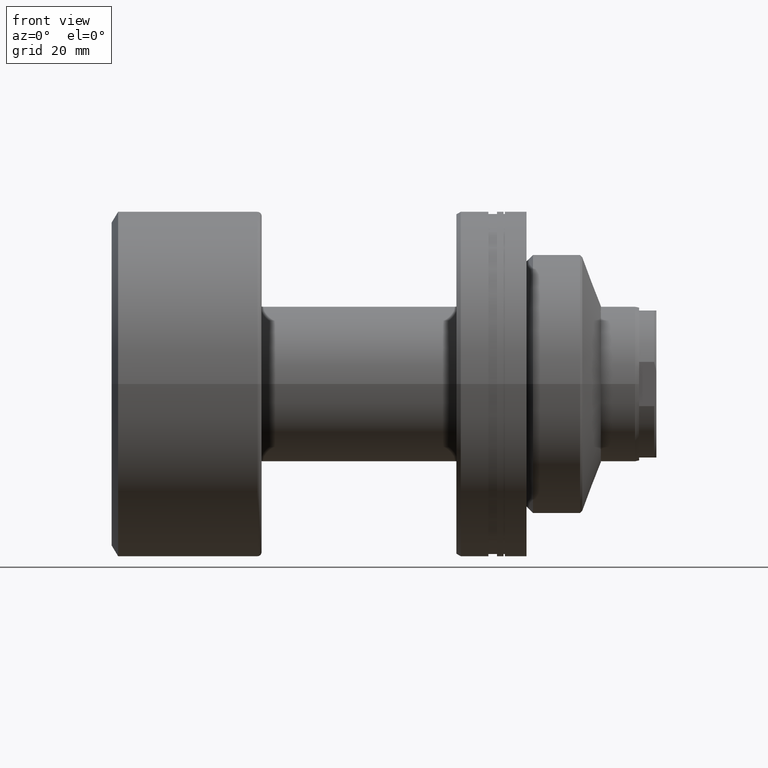
[diagram: clean part render]
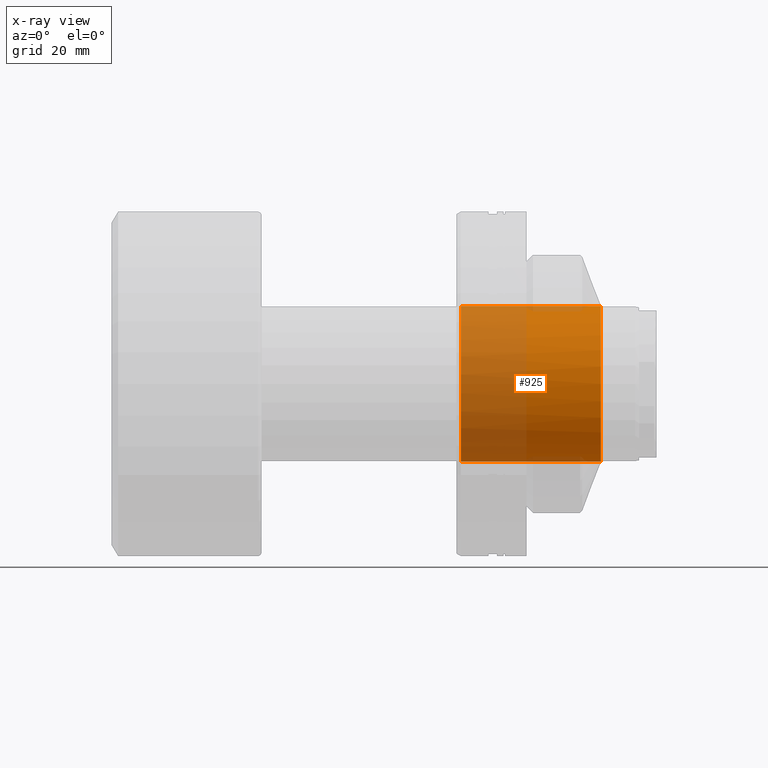
[diagram: x-ray — body ghosted, one internal face saturated and labeled with its STEP entity id]
A machine part, front view, then the same camera in x-ray: the body is ghosted and one INTERNAL B-rep face — a face not visible from any outside direction — is saturated and labeled: STEP entity #925.
In plain terms, the highlighted cylindrical surface (partial cylindrical patch) has radius 18 mm, axis along (1, 0, 0).
Its self-contained STEP definition (entity closure, byte-faithful):
#1 = AXIS2_PLACEMENT_3D ( 'NONE', #1740, #2313, #1235 ) ;
#58 = CARTESIAN_POINT ( 'NONE',  ( -6.772881355932611314, -17.99999999999998934, 0.000000000000000000 ) ) ;
#73 = CARTESIAN_POINT ( 'NONE',  ( -91.11168824543142364, 2.204364238465235033E-15, 18.00000000000000000 ) ) ;
#106 = EDGE_CURVE ( 'NONE', #1420, #485, #1734, .T. ) ;
#107 = CARTESIAN_POINT ( 'NONE',  ( -91.11168824543142364, 0.000000000000000000, 0.000000000000000000 ) ) ;
#368 = CARTESIAN_POINT ( 'NONE',  ( -39.19999999999999574, 2.204364238465235033E-15, 18.00000000000000000 ) ) ;
#434 = DIRECTION ( 'NONE',  ( 1.000000000000000000, -0.000000000000000000, -0.000000000000000000 ) ) ;
#452 = FACE_OUTER_BOUND ( 'NONE', #2282, .T. ) ;
#472 = LINE ( 'NONE', #2104, #1460 ) ;
#485 = VERTEX_POINT ( 'NONE', #1970 ) ;
#487 = EDGE_CURVE ( 'NONE', #1818, #1420, #1054, .T. ) ;
#562 = CARTESIAN_POINT ( 'NONE',  ( -6.772881355932618419, 4.622231866529366047E-30, -18.00000000000000000 ) ) ;
#626 = DIRECTION ( 'NONE',  ( 1.000000000000000000, -0.000000000000000000, -0.000000000000000000 ) ) ;
#628 = AXIS2_PLACEMENT_3D ( 'NONE', #2164, #1599, #2294 ) ;
#727 = AXIS2_PLACEMENT_3D ( 'NONE', #107, #434, #2094 ) ;
#840 = CIRCLE ( 'NONE', #1500, 18.00000000000000000 ) ;
#868 = CARTESIAN_POINT ( 'NONE',  ( -39.19999999999999574, 0.000000000000000000, -18.00000000000000000 ) ) ;
#879 = EDGE_CURVE ( 'NONE', #2025, #1818, #472, .T. ) ;
#925 = ADVANCED_FACE ( 'NONE', ( #452 ), #1204, .F. ) ;
#971 = DIRECTION ( 'NONE',  ( 0.000000000000000000, 0.000000000000000000, -1.000000000000000000 ) ) ;
#1019 = DIRECTION ( 'NONE',  ( 1.000000000000000000, -0.000000000000000000, -0.000000000000000000 ) ) ;
#1054 = CIRCLE ( 'NONE', #628, 18.00000000000000000 ) ;
#1140 = DIRECTION ( 'NONE',  ( -1.000000000000000000, 0.000000000000000000, 0.000000000000000000 ) ) ;
#1160 = VERTEX_POINT ( 'NONE', #368 ) ;
#1204 = CYLINDRICAL_SURFACE ( 'NONE', #727, 18.00000000000000000 ) ;
#1235 = DIRECTION ( 'NONE',  ( 3.854941057726238097E-16, -1.000000000000000000, 0.000000000000000000 ) ) ;
#1337 = EDGE_CURVE ( 'NONE', #1160, #485, #1372, .T. ) ;
#1372 = LINE ( 'NONE', #73, #1906 ) ;
#1420 = VERTEX_POINT ( 'NONE', #58 ) ;
#1460 = VECTOR ( 'NONE', #1019, 1000.000000000000000 ) ;
#1500 = AXIS2_PLACEMENT_3D ( 'NONE', #1681, #1140, #971 ) ;
#1544 = EDGE_CURVE ( 'NONE', #2025, #1160, #840, .T. ) ;
#1599 = DIRECTION ( 'NONE',  ( -1.000000000000000000, -3.738146982434194072E-16, 0.000000000000000000 ) ) ;
#1681 = CARTESIAN_POINT ( 'NONE',  ( -39.19999999999999574, 0.000000000000000000, 0.000000000000000000 ) ) ;
#1734 = CIRCLE ( 'NONE', #1, 18.00000000000000000 ) ;
#1740 = CARTESIAN_POINT ( 'NONE',  ( -6.772881355932618419, 8.787314973116373205E-15, 0.000000000000000000 ) ) ;
#1818 = VERTEX_POINT ( 'NONE', #562 ) ;
#1876 = ORIENTED_EDGE ( 'NONE', *, *, #487, .F. ) ;
#1906 = VECTOR ( 'NONE', #626, 1000.000000000000000 ) ;
#1930 = ORIENTED_EDGE ( 'NONE', *, *, #1544, .T. ) ;
#1947 = ORIENTED_EDGE ( 'NONE', *, *, #879, .F. ) ;
#1970 = CARTESIAN_POINT ( 'NONE',  ( -6.772881355932618419, 2.204364238465240161E-15, 18.00000000000000000 ) ) ;
#2025 = VERTEX_POINT ( 'NONE', #868 ) ;
#2071 = ORIENTED_EDGE ( 'NONE', *, *, #106, .F. ) ;
#2092 = ORIENTED_EDGE ( 'NONE', *, *, #1337, .T. ) ;
#2094 = DIRECTION ( 'NONE',  ( 0.000000000000000000, 0.000000000000000000, -1.000000000000000000 ) ) ;
#2104 = CARTESIAN_POINT ( 'NONE',  ( -91.11168824543142364, 0.000000000000000000, -18.00000000000000000 ) ) ;
#2164 = CARTESIAN_POINT ( 'NONE',  ( -6.772881355932618419, 8.787314973116373205E-15, 0.000000000000000000 ) ) ;
#2282 = EDGE_LOOP ( 'NONE', ( #1930, #2092, #2071, #1876, #1947 ) ) ;
#2294 = DIRECTION ( 'NONE',  ( 3.854941057726238097E-16, -1.000000000000000000, 0.000000000000000000 ) ) ;
#2313 = DIRECTION ( 'NONE',  ( -1.000000000000000000, -3.738146982434194072E-16, 0.000000000000000000 ) ) ;